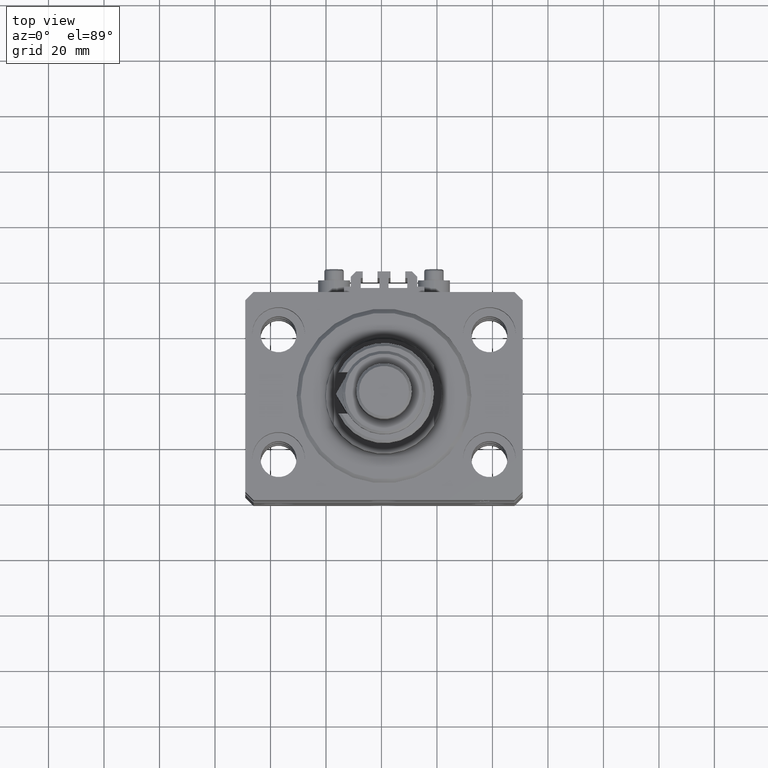
[diagram: clean part render]
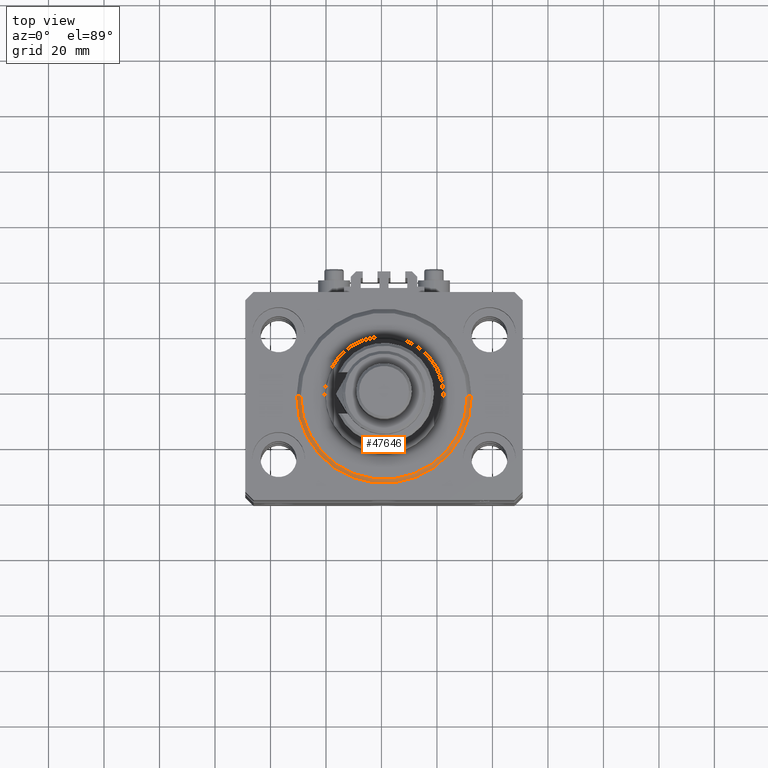
[diagram: same view with one face highlighted and labeled with its STEP entity id]
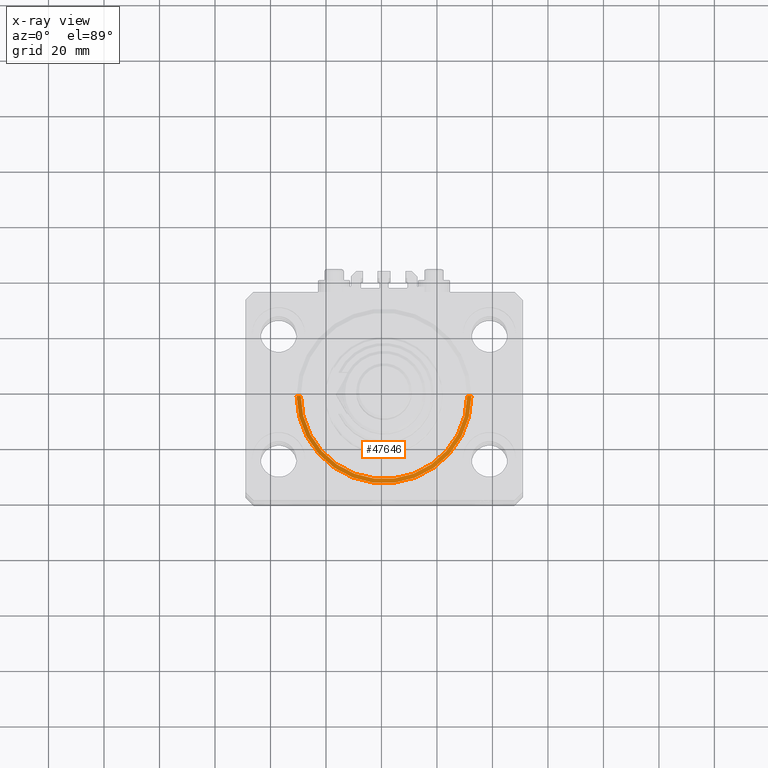
[diagram: x-ray of the same camera — body ghosted, the highlighted face saturated]
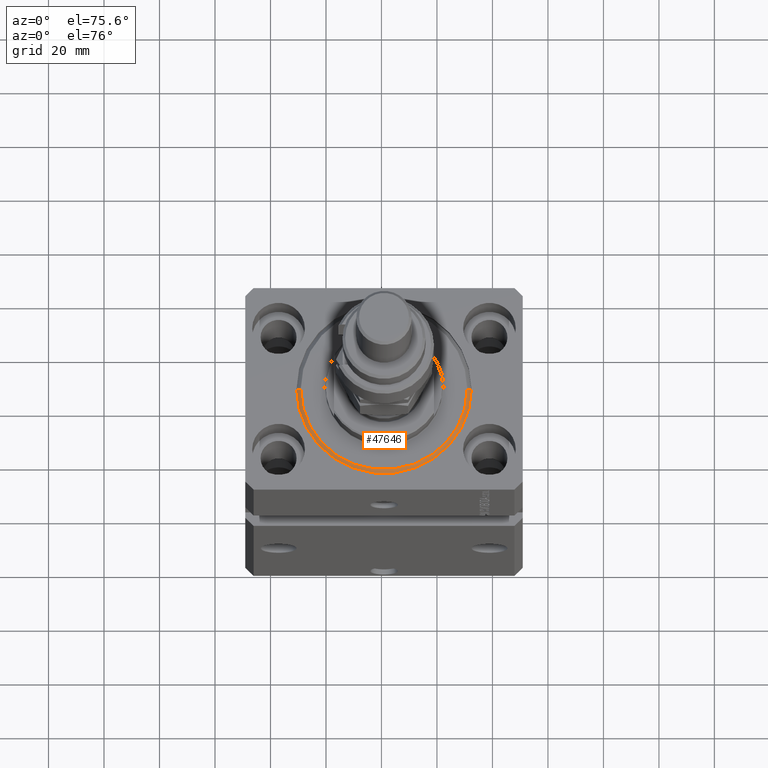
[diagram: same view with one face highlighted and labeled with its STEP entity id]
A machine part, top view. The second image highlights one B-rep face of the part: STEP entity #47646.
The next image is the same camera in x-ray: the body ghosted, the highlighted face saturated — about 0% of this face is hidden behind the body in this view.
A second angle (auxiliary view) of the same face is appended — the face is thin or edge-on in the first view.
In plain terms, the highlighted conical surface has half-angle 45 deg.
Its self-contained STEP definition (entity closure, byte-faithful):
#1021 = DIRECTION ( 'NONE',  ( -0.000000000000000000, -0.000000000000000000, -1.000000000000000000 ) ) ;
#1769 = EDGE_CURVE ( 'NONE', #38857, #27453, #49049, .T. ) ;
#2424 = CARTESIAN_POINT ( 'NONE',  ( -31.50000000000000000, 0.000000000000000000, 1.500000000000001332 ) ) ;
#3151 = EDGE_CURVE ( 'NONE', #15788, #12361, #24976, .T. ) ;
#3407 = AXIS2_PLACEMENT_3D ( 'NONE', #28961, #28708, #33341 ) ;
#3572 = CARTESIAN_POINT ( 'NONE',  ( 31.50000000000000000, 3.857637417314162689E-15, 1.500000000000001332 ) ) ;
#4147 = CARTESIAN_POINT ( 'NONE',  ( -29.99999999999999289, 3.765788907378110539E-15, 0.000000000000000000 ) ) ;
#5149 = VECTOR ( 'NONE', #49806, 1000.000000000000000 ) ;
#5589 = CIRCLE ( 'NONE', #33585, 29.99999999999999289 ) ;
#9373 = FACE_OUTER_BOUND ( 'NONE', #24090, .T. ) ;
#10002 = DIRECTION ( 'NONE',  ( -0.7071067811865491270, 8.659560562354952580E-17, 0.7071067811865459074 ) ) ;
#10129 = VECTOR ( 'NONE', #10002, 1000.000000000000000 ) ;
#12055 = CONICAL_SURFACE ( 'NONE', #48453, 31.50000000000000000, 0.7853981633974506105 ) ;
#12361 = VERTEX_POINT ( 'NONE', #2424 ) ;
#12370 = CARTESIAN_POINT ( 'NONE',  ( 0.000000000000000000, 0.000000000000000000, 0.000000000000000000 ) ) ;
#13394 = DIRECTION ( 'NONE',  ( 1.000000000000000000, 0.000000000000000000, 0.000000000000000000 ) ) ;
#15788 = VERTEX_POINT ( 'NONE', #4147 ) ;
#24090 = EDGE_LOOP ( 'NONE', ( #24234, #27083, #47098, #27162 ) ) ;
#24234 = ORIENTED_EDGE ( 'NONE', *, *, #3151, .F. ) ;
#24976 = LINE ( 'NONE', #41482, #10129 ) ;
#25107 = DIRECTION ( 'NONE',  ( -0.000000000000000000, -0.000000000000000000, 1.000000000000000000 ) ) ;
#27083 = ORIENTED_EDGE ( 'NONE', *, *, #50070, .F. ) ;
#27162 = ORIENTED_EDGE ( 'NONE', *, *, #36465, .F. ) ;
#27453 = VERTEX_POINT ( 'NONE', #3572 ) ;
#28708 = DIRECTION ( 'NONE',  ( -0.000000000000000000, -0.000000000000000000, 1.000000000000000000 ) ) ;
#28961 = CARTESIAN_POINT ( 'NONE',  ( 0.000000000000000000, 0.000000000000000000, 1.500000000000001332 ) ) ;
#30435 = CARTESIAN_POINT ( 'NONE',  ( 31.50000000000000000, 0.000000000000000000, 1.500000000000001332 ) ) ;
#31400 = CIRCLE ( 'NONE', #3407, 31.50000000000000000 ) ;
#32655 = CARTESIAN_POINT ( 'NONE',  ( 29.99999999999999289, 0.000000000000000000, 0.000000000000000000 ) ) ;
#33341 = DIRECTION ( 'NONE',  ( 1.000000000000000000, 0.000000000000000000, 0.000000000000000000 ) ) ;
#33585 = AXIS2_PLACEMENT_3D ( 'NONE', #12370, #1021, #13394 ) ;
#36465 = EDGE_CURVE ( 'NONE', #12361, #27453, #31400, .T. ) ;
#38857 = VERTEX_POINT ( 'NONE', #32655 ) ;
#40851 = DIRECTION ( 'NONE',  ( 1.000000000000000000, 0.000000000000000000, 0.000000000000000000 ) ) ;
#41482 = CARTESIAN_POINT ( 'NONE',  ( -31.50000000000000000, 3.857637417314162689E-15, 1.500000000000001332 ) ) ;
#45512 = CARTESIAN_POINT ( 'NONE',  ( 0.000000000000000000, 0.000000000000000000, 1.500000000000001332 ) ) ;
#47098 = ORIENTED_EDGE ( 'NONE', *, *, #1769, .T. ) ;
#47646 = ADVANCED_FACE ( 'NONE', ( #9373 ), #12055, .T. ) ;
#48453 = AXIS2_PLACEMENT_3D ( 'NONE', #45512, #25107, #40851 ) ;
#49049 = LINE ( 'NONE', #30435, #5149 ) ;
#49806 = DIRECTION ( 'NONE',  ( 0.7071067811865491270, 0.000000000000000000, 0.7071067811865459074 ) ) ;
#50070 = EDGE_CURVE ( 'NONE', #38857, #15788, #5589, .T. ) ;